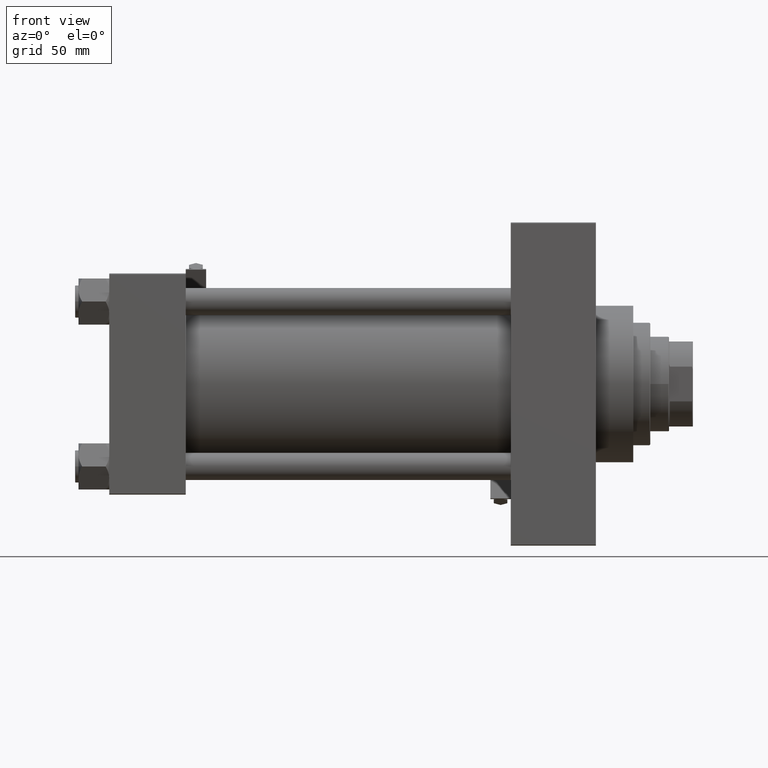
[diagram: clean part render]
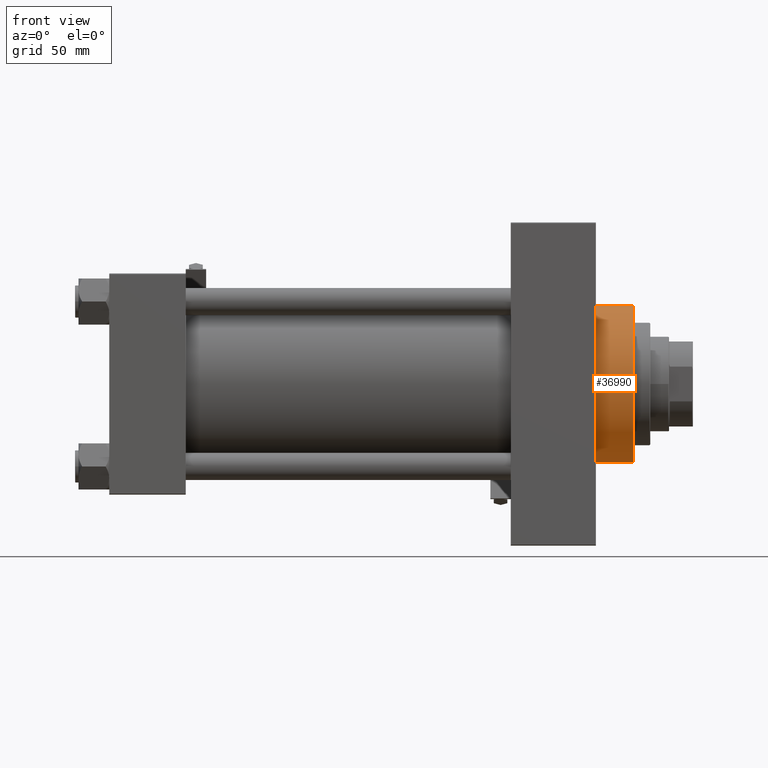
[diagram: same view with one face highlighted and labeled with its STEP entity id]
A machine part, front view. The second image highlights one B-rep face of the part: STEP entity #36990.
In plain terms, the highlighted cylindrical surface (partial cylindrical patch) has radius 46 mm, axis along (-1, -0, -0).
Its self-contained STEP definition (entity closure, byte-faithful):
#37 = VERTEX_POINT ( 'NONE', #6435 ) ;
#1297 = AXIS2_PLACEMENT_3D ( 'NONE', #20403, #6076, #39645 ) ;
#3571 = CARTESIAN_POINT ( 'NONE',  ( 308.0000000000000000, 0.000000000000000000, 46.00000000000000000 ) ) ;
#4667 = CARTESIAN_POINT ( 'NONE',  ( 308.0000000000000000, 0.000000000000000000, 0.000000000000000000 ) ) ;
#5912 = VECTOR ( 'NONE', #48405, 1000.000000000000000 ) ;
#6076 = DIRECTION ( 'NONE',  ( 1.000000000000000000, 0.000000000000000000, 0.000000000000000000 ) ) ;
#6435 = CARTESIAN_POINT ( 'NONE',  ( 286.0000000000000000, 0.000000000000000000, 46.00000000000000000 ) ) ;
#6736 = ORIENTED_EDGE ( 'NONE', *, *, #8083, .T. ) ;
#7265 = LINE ( 'NONE', #3571, #39081 ) ;
#8083 = EDGE_CURVE ( 'NONE', #37, #33587, #21796, .T. ) ;
#10302 = EDGE_LOOP ( 'NONE', ( #48734, #19694, #27869, #6736 ) ) ;
#13318 = AXIS2_PLACEMENT_3D ( 'NONE', #39955, #36485, #39690 ) ;
#16033 = DIRECTION ( 'NONE',  ( 0.000000000000000000, 0.000000000000000000, 1.000000000000000000 ) ) ;
#17886 = EDGE_CURVE ( 'NONE', #35085, #37, #7265, .T. ) ;
#19694 = ORIENTED_EDGE ( 'NONE', *, *, #32394, .F. ) ;
#20268 = EDGE_CURVE ( 'NONE', #34069, #33587, #37538, .T. ) ;
#20403 = CARTESIAN_POINT ( 'NONE',  ( 286.0000000000000000, 0.000000000000000000, 0.000000000000000000 ) ) ;
#21211 = CIRCLE ( 'NONE', #13318, 46.00000000000000000 ) ;
#21796 = CIRCLE ( 'NONE', #1297, 46.00000000000000000 ) ;
#22952 = CYLINDRICAL_SURFACE ( 'NONE', #41940, 46.00000000000000000 ) ;
#27869 = ORIENTED_EDGE ( 'NONE', *, *, #17886, .T. ) ;
#32394 = EDGE_CURVE ( 'NONE', #35085, #34069, #21211, .T. ) ;
#33109 = CARTESIAN_POINT ( 'NONE',  ( 308.0000000000000000, 5.633375276077824704E-15, -46.00000000000000000 ) ) ;
#33587 = VERTEX_POINT ( 'NONE', #37101 ) ;
#34069 = VERTEX_POINT ( 'NONE', #37163 ) ;
#35085 = VERTEX_POINT ( 'NONE', #45654 ) ;
#36485 = DIRECTION ( 'NONE',  ( 1.000000000000000000, 0.000000000000000000, 0.000000000000000000 ) ) ;
#36990 = ADVANCED_FACE ( 'NONE', ( #38741 ), #22952, .T. ) ;
#37101 = CARTESIAN_POINT ( 'NONE',  ( 286.0000000000000000, 5.633375276077824704E-15, -46.00000000000000000 ) ) ;
#37163 = CARTESIAN_POINT ( 'NONE',  ( 308.0000000000000000, 5.633375276077824704E-15, -46.00000000000000000 ) ) ;
#37538 = LINE ( 'NONE', #33109, #5912 ) ;
#37889 = DIRECTION ( 'NONE',  ( -1.000000000000000000, -0.000000000000000000, -0.000000000000000000 ) ) ;
#38741 = FACE_OUTER_BOUND ( 'NONE', #10302, .T. ) ;
#39081 = VECTOR ( 'NONE', #37889, 1000.000000000000000 ) ;
#39645 = DIRECTION ( 'NONE',  ( 0.000000000000000000, 0.000000000000000000, -1.000000000000000000 ) ) ;
#39690 = DIRECTION ( 'NONE',  ( 0.000000000000000000, 0.000000000000000000, -1.000000000000000000 ) ) ;
#39955 = CARTESIAN_POINT ( 'NONE',  ( 308.0000000000000000, 0.000000000000000000, 0.000000000000000000 ) ) ;
#41940 = AXIS2_PLACEMENT_3D ( 'NONE', #4667, #45432, #16033 ) ;
#45432 = DIRECTION ( 'NONE',  ( -1.000000000000000000, -0.000000000000000000, -0.000000000000000000 ) ) ;
#45654 = CARTESIAN_POINT ( 'NONE',  ( 308.0000000000000000, 0.000000000000000000, 46.00000000000000000 ) ) ;
#48405 = DIRECTION ( 'NONE',  ( -1.000000000000000000, -0.000000000000000000, -0.000000000000000000 ) ) ;
#48734 = ORIENTED_EDGE ( 'NONE', *, *, #20268, .F. ) ;